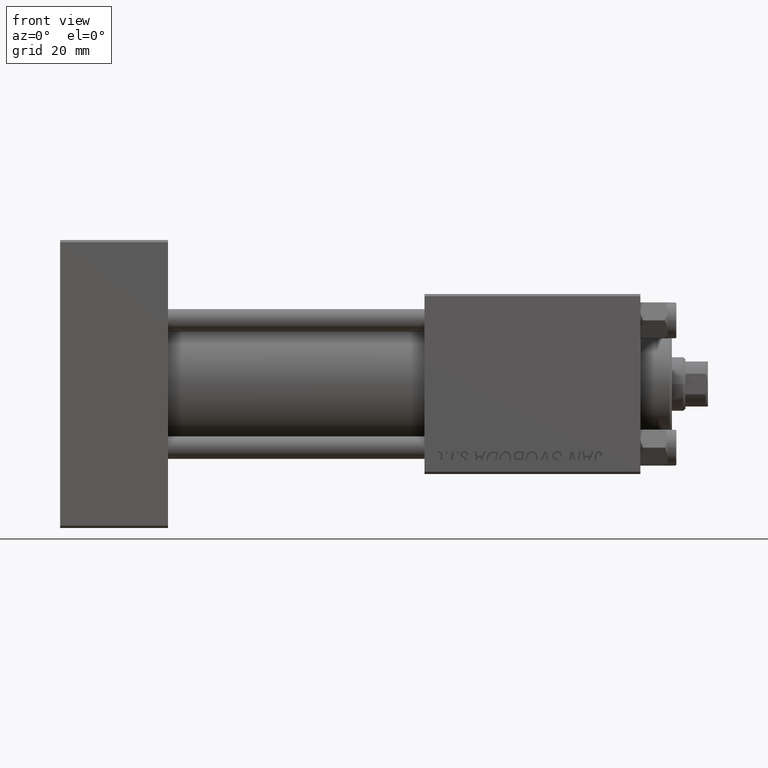
[diagram: clean part render]
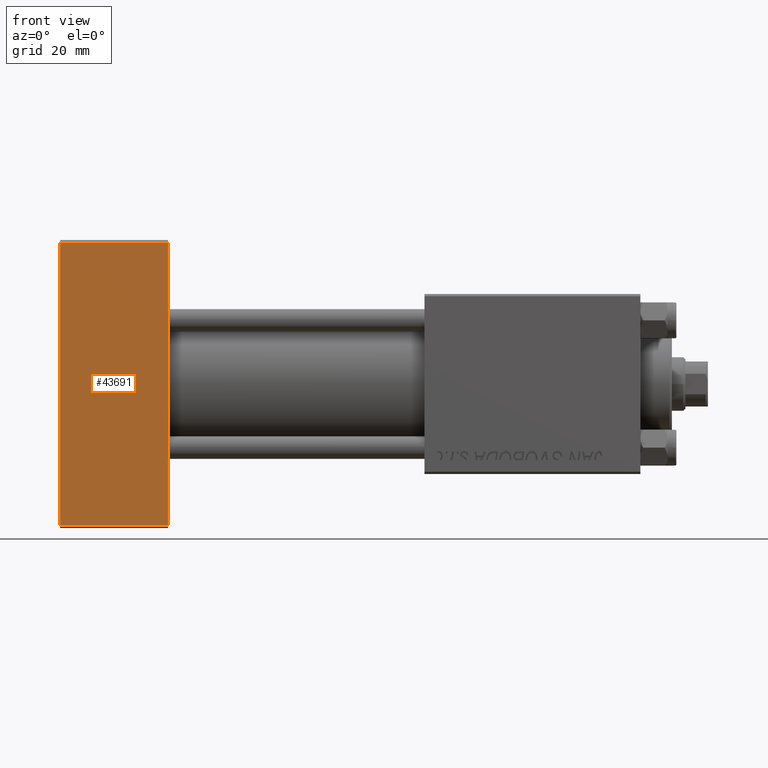
[diagram: same view with one face highlighted and labeled with its STEP entity id]
A machine part, front view. The second image highlights one B-rep face of the part: STEP entity #43691.
In plain terms, the highlighted planar face has unit normal (0, 1, 0).
Its self-contained STEP definition (entity closure, byte-faithful):
#386 = VERTEX_POINT ( 'NONE', #22164 ) ;
#3752 = CARTESIAN_POINT ( 'NONE',  ( 24.00000000000000000, -20.00000000000000355, -31.49999999999997158 ) ) ;
#4846 = DIRECTION ( 'NONE',  ( 0.000000000000000000, 0.000000000000000000, -1.000000000000000000 ) ) ;
#5193 = VECTOR ( 'NONE', #8468, 1000.000000000000000 ) ;
#7517 = DIRECTION ( 'NONE',  ( -1.000000000000000000, 0.000000000000000000, 0.000000000000000000 ) ) ;
#8027 = DIRECTION ( 'NONE',  ( 1.000000000000000000, 0.000000000000000000, 0.000000000000000000 ) ) ;
#8109 = VERTEX_POINT ( 'NONE', #26965 ) ;
#8468 = DIRECTION ( 'NONE',  ( 0.000000000000000000, 0.000000000000000000, -1.000000000000000000 ) ) ;
#9118 = FACE_OUTER_BOUND ( 'NONE', #22384, .T. ) ;
#9367 = EDGE_CURVE ( 'NONE', #386, #8109, #32190, .T. ) ;
#10105 = DIRECTION ( 'NONE',  ( 0.000000000000000000, -0.000000000000000000, 1.000000000000000000 ) ) ;
#12656 = CARTESIAN_POINT ( 'NONE',  ( 0.000000000000000000, -20.00000000000000355, 32.00000000000000000 ) ) ;
#15540 = AXIS2_PLACEMENT_3D ( 'NONE', #29273, #44679, #10105 ) ;
#20833 = VERTEX_POINT ( 'NONE', #21766 ) ;
#21766 = CARTESIAN_POINT ( 'NONE',  ( 0.000000000000000000, -20.00000000000000355, -31.49999999999997158 ) ) ;
#22164 = CARTESIAN_POINT ( 'NONE',  ( 24.00000000000000000, -20.00000000000000355, 31.50000000000000711 ) ) ;
#22384 = EDGE_LOOP ( 'NONE', ( #33022, #22709, #22584, #23505 ) ) ;
#22584 = ORIENTED_EDGE ( 'NONE', *, *, #9367, .F. ) ;
#22709 = ORIENTED_EDGE ( 'NONE', *, *, #26790, .T. ) ;
#23505 = ORIENTED_EDGE ( 'NONE', *, *, #25868, .T. ) ;
#25868 = EDGE_CURVE ( 'NONE', #386, #45607, #42094, .T. ) ;
#26790 = EDGE_CURVE ( 'NONE', #20833, #8109, #34532, .T. ) ;
#26965 = CARTESIAN_POINT ( 'NONE',  ( 24.00000000000000000, -20.00000000000000355, -31.49999999999997158 ) ) ;
#29273 = CARTESIAN_POINT ( 'NONE',  ( 24.00000000000000000, -20.00000000000000355, 32.00000000000000000 ) ) ;
#31471 = CARTESIAN_POINT ( 'NONE',  ( 24.00000000000000000, -20.00000000000000355, 31.50000000000000711 ) ) ;
#32009 = VECTOR ( 'NONE', #7517, 1000.000000000000000 ) ;
#32190 = LINE ( 'NONE', #43292, #5193 ) ;
#33022 = ORIENTED_EDGE ( 'NONE', *, *, #46482, .T. ) ;
#33665 = VECTOR ( 'NONE', #8027, 1000.000000000000000 ) ;
#34532 = LINE ( 'NONE', #3752, #33665 ) ;
#38877 = CARTESIAN_POINT ( 'NONE',  ( 0.000000000000000000, -20.00000000000000355, 31.50000000000000711 ) ) ;
#39172 = LINE ( 'NONE', #12656, #43700 ) ;
#40644 = PLANE ( 'NONE',  #15540 ) ;
#42094 = LINE ( 'NONE', #31471, #32009 ) ;
#43292 = CARTESIAN_POINT ( 'NONE',  ( 24.00000000000000000, -20.00000000000000355, 32.00000000000000000 ) ) ;
#43691 = ADVANCED_FACE ( 'NONE', ( #9118 ), #40644, .F. ) ;
#43700 = VECTOR ( 'NONE', #4846, 1000.000000000000000 ) ;
#44679 = DIRECTION ( 'NONE',  ( -0.000000000000000000, 1.000000000000000000, 0.000000000000000000 ) ) ;
#45607 = VERTEX_POINT ( 'NONE', #38877 ) ;
#46482 = EDGE_CURVE ( 'NONE', #45607, #20833, #39172, .T. ) ;